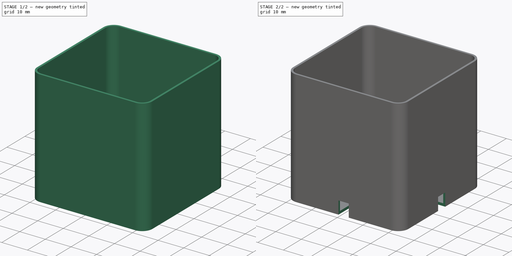
[diagram: build sequence overview — one tinted view per stage of 2, left to right]
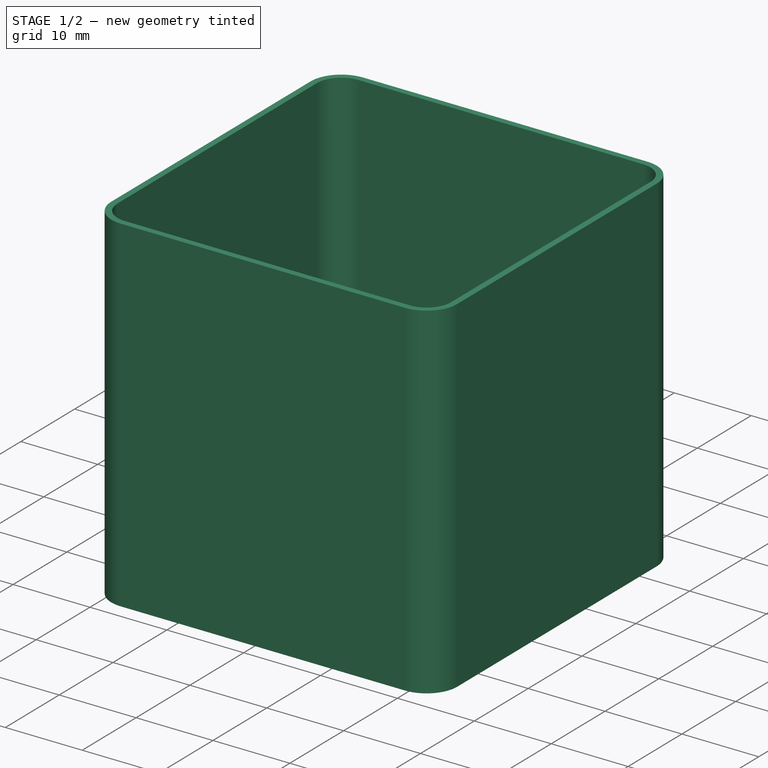
[diagram: stage 1 of 2 — iso view after this stage's code; geometry added in this stage tinted green]
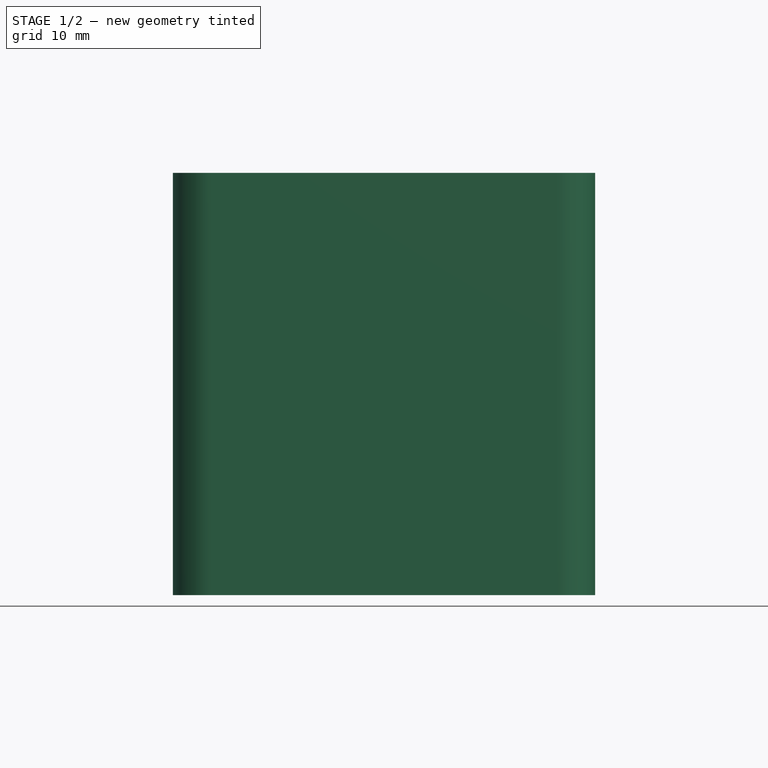
[diagram: stage 1 of 2 — front view after this stage's code; geometry added in this stage tinted green]
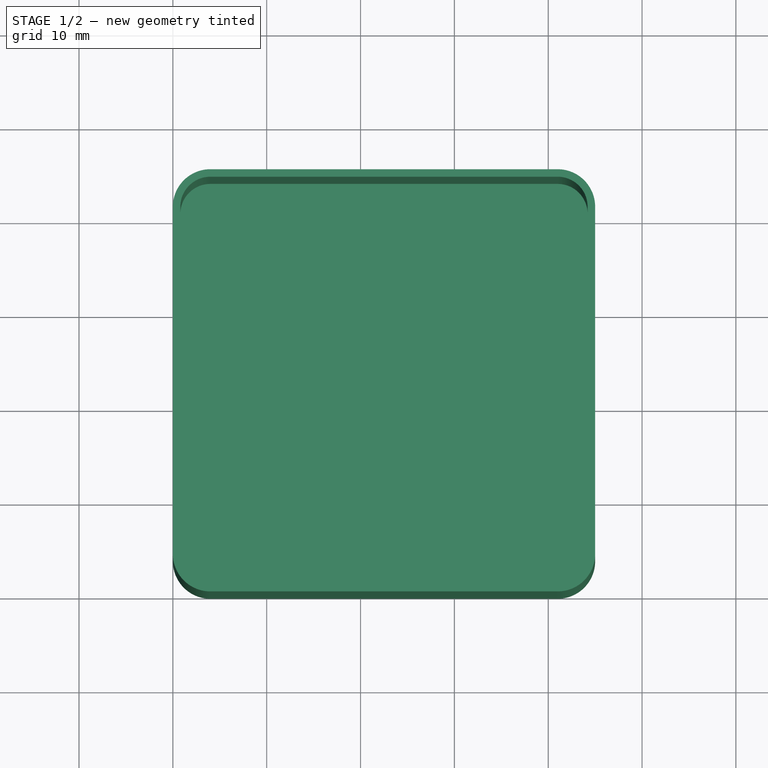
[diagram: stage 1 of 2 — top view after this stage's code; geometry added in this stage tinted green]
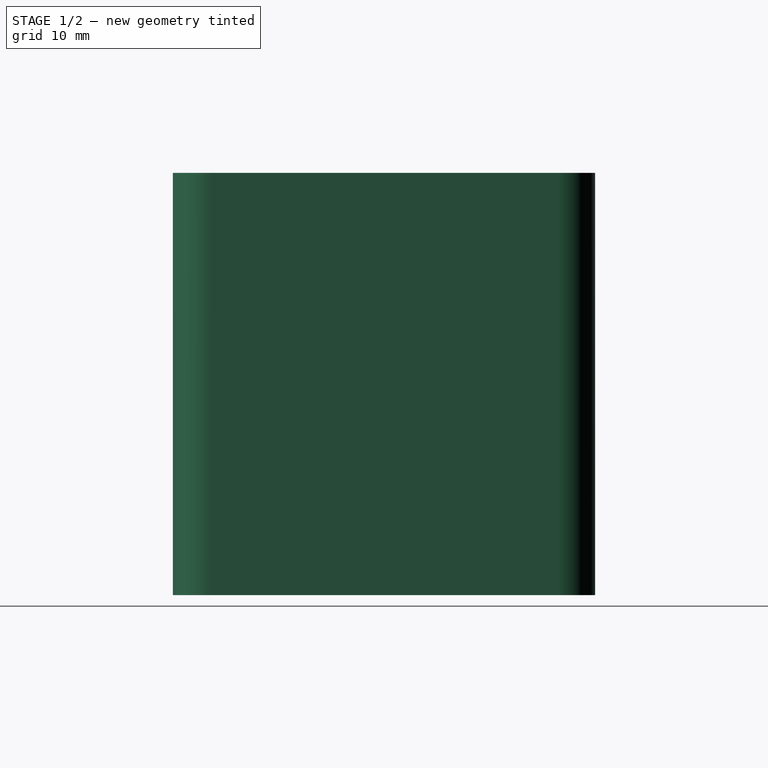
[diagram: stage 1 of 2 — right view after this stage's code; geometry added in this stage tinted green]
FCSTD DOCUMENT  (FreeCAD 1.0R39319 (Git))
Label: flower-pot
License: All rights reserved
LicenseURL: https://en.wikipedia.org/wiki/All_rights_reserved
objects: Sketcher::SketchObject×3, PartDesign::Pocket×2, PartDesign::Pad×1, PartDesign::Body×1
note: 16 computed .brp shape members not serialized (recipe doc carries the construction recipe); baked Part::Feature solids carry a one-line shape summary decoded from their .brp

FEATURE [Sketcher::SketchObject] Sketch
  ArcFitTolerance = 1e-06
  AttachmentSupport = -> [XY_Plane]
  FullyConstrained = true
  MakeInternals = false
  MapMode = 5
  sketch-geometry (10):
    g0: LineSegment StartX=4 StartY=0 StartZ=0 EndX=41 EndY=0 EndZ=0
    g1: LineSegment StartX=45 StartY=4 StartZ=0 EndX=45 EndY=41 EndZ=0
    g2: LineSegment StartX=41 StartY=45 StartZ=0 EndX=4 EndY=45 EndZ=0
    g3: LineSegment StartX=0 StartY=41 StartZ=0 EndX=0 EndY=4 EndZ=0
    g4: ArcOfCircle CenterX=4 CenterY=4 CenterZ=0 NormalX=0 NormalY=0 NormalZ=1 AngleXU=0 Radius=4 StartAngle=3.14159 EndAngle=4.71239
    g5: ArcOfCircle CenterX=41 CenterY=4 CenterZ=0 NormalX=0 NormalY=0 NormalZ=1 AngleXU=0 Radius=4 StartAngle=4.71239 EndAngle=6.28319
    g6: ArcOfCircle CenterX=41 CenterY=41 CenterZ=0 NormalX=0 NormalY=0 NormalZ=1 AngleXU=0 Radius=4 StartAngle=5e-16 EndAngle=1.5708
    g7: ArcOfCircle CenterX=4 CenterY=41 CenterZ=0 NormalX=0 NormalY=0 NormalZ=1 AngleXU=0 Radius=4 StartAngle=1.5708 EndAngle=3.14159
    g8: GeomPoint [constr] X=0 Y=0 Z=0
    g9: GeomPoint [constr] X=45 Y=45 Z=0
  constraints (23):
    c: Tangent(g0,g4) = -1.5708
    c: Tangent(g0,g5) = -1.5708
    c: Tangent(g1,g5) = -1.5708
    c: Tangent(g1,g6) = -1.5708
    c: Tangent(g2,g6) = -1.5708
    c: Tangent(g2,g7) = -1.5708
    c: Tangent(g3,g7) = -1.5708
    c: Tangent(g3,g4) = -1.5708
    c: Horizontal(g0)
    c: Horizontal(g2)
    c: Vertical(g1)
    c: Vertical(g3)
    c: Equal(g4,g5)
    c: Equal(g5,g6)
    c: Equal(g6,g7)
    c: PointOnObject(g8,g0)
    c: PointOnObject(g8,g3)
    c: PointOnObject(g9,g1)
    c: PointOnObject(g9,g2)
    c: Radius(g5) = 4
    c: Coincident(g8,g-1)
    c: DistanceX(g3,g1) = 45
    c: Equal(g3,g2)
FEATURE [PartDesign::Pad] Pad
  Direction = (0,0,1)
  Length = 45
  Length2 = 10
  Profile = -> Sketch
  ReferenceAxis = -> Sketch [N_Axis]
  Refine = true
  Suppressed = false
  Type = 0
FEATURE [Sketcher::SketchObject] Sketch001
  ArcFitTolerance = 1e-06
  AttachmentSupport = -> [Pad]
  ExternalGeometry = -> [Pad]
  FullyConstrained = true
  MakeInternals = false
  MapMode = 5
  Placement = pos=(0,0,45) rot=(0,0,1;0rad)
  sketch-geometry (10):
    g0: LineSegment StartX=4 StartY=0.8 StartZ=0 EndX=41 EndY=0.8 EndZ=0
    g1: LineSegment StartX=44.2 StartY=4 StartZ=0 EndX=44.2 EndY=41 EndZ=0
    g2: LineSegment StartX=41 StartY=44.2 StartZ=0 EndX=4 EndY=44.2 EndZ=0
    g3: LineSegment StartX=0.8 StartY=41 StartZ=0 EndX=0.8 EndY=4 EndZ=0
    g4: ArcOfCircle CenterX=4 CenterY=4 CenterZ=0 NormalX=0 NormalY=0 NormalZ=1 AngleXU=0 Radius=3.2 StartAngle=3.14159 EndAngle=4.71239
    g5: ArcOfCircle CenterX=41 CenterY=4 CenterZ=0 NormalX=0 NormalY=0 NormalZ=1 AngleXU=0 Radius=3.2 StartAngle=4.71239 EndAngle=6.28319
    g6: ArcOfCircle CenterX=41 CenterY=41 CenterZ=0 NormalX=0 NormalY=0 NormalZ=1 AngleXU=0 Radius=3.2 StartAngle=-9e-16 EndAngle=1.5708
    g7: ArcOfCircle CenterX=4 CenterY=41 CenterZ=0 NormalX=0 NormalY=0 NormalZ=1 AngleXU=0 Radius=3.2 StartAngle=1.5708 EndAngle=3.14159
    g8: GeomPoint [constr] X=0.8 Y=0.8 Z=0
    g9: GeomPoint [constr] X=44.2 Y=44.2 Z=0
  constraints (24):
    c: Tangent(g0,g4) = -1.5708
    c: Tangent(g0,g5) = -1.5708
    c: Tangent(g1,g5) = -1.5708
    c: Tangent(g1,g6) = -1.5708
    c: Tangent(g2,g6) = -1.5708
    c: Tangent(g2,g7) = -1.5708
    c: Tangent(g3,g7) = -1.5708
    c: Tangent(g3,g4) = -1.5708
    c: Horizontal(g0)
    c: Horizontal(g2)
    c: Vertical(g1)
    c: Vertical(g3)
    c: Equal(g4,g5)
    c: Equal(g5,g6)
    c: Equal(g6,g7)
    c: PointOnObject(g8,g0)
    c: PointOnObject(g8,g3)
    c: PointOnObject(g9,g1)
    c: PointOnObject(g9,g2)
    c: Radius(g5) = 3.2
    c: Equal(g3,g2)
    c: DistanceY(g-6,g0) = 0.8
    c: DistanceX(g-3,g3) = 0.8
    c: DistanceX(g1,g-5) = 0.8
FEATURE [PartDesign::Pocket] Pocket
  BaseFeature = -> Pad
  Direction = (0,0,-1)
  Length = 44
  Length2 = 5
  Profile = -> Sketch001
  ReferenceAxis = -> Sketch001 [N_Axis]
  Refine = true
  Suppressed = false
  Type = 0
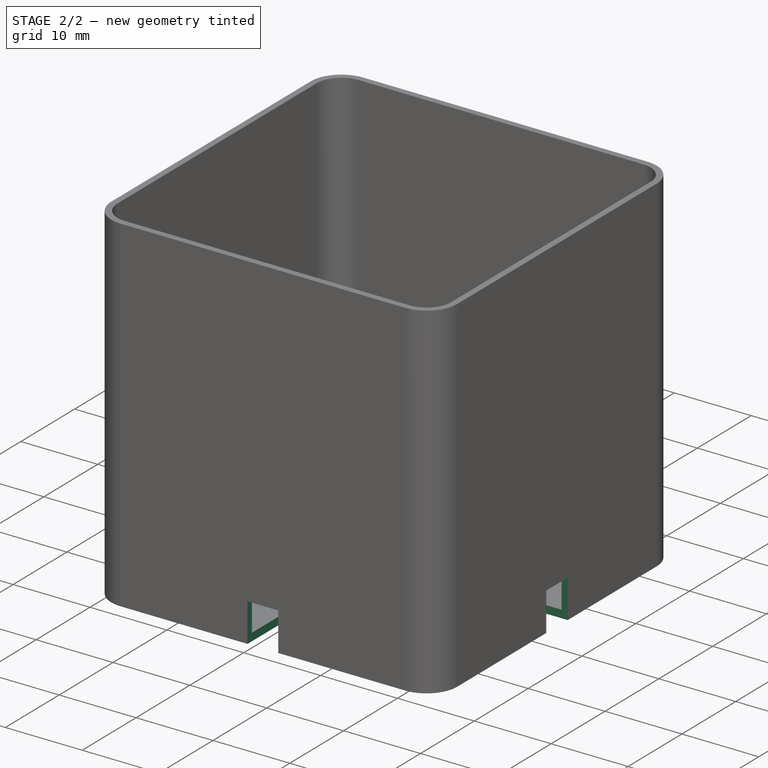
[diagram: stage 2 of 2 — iso view after this stage's code; geometry added in this stage tinted green]
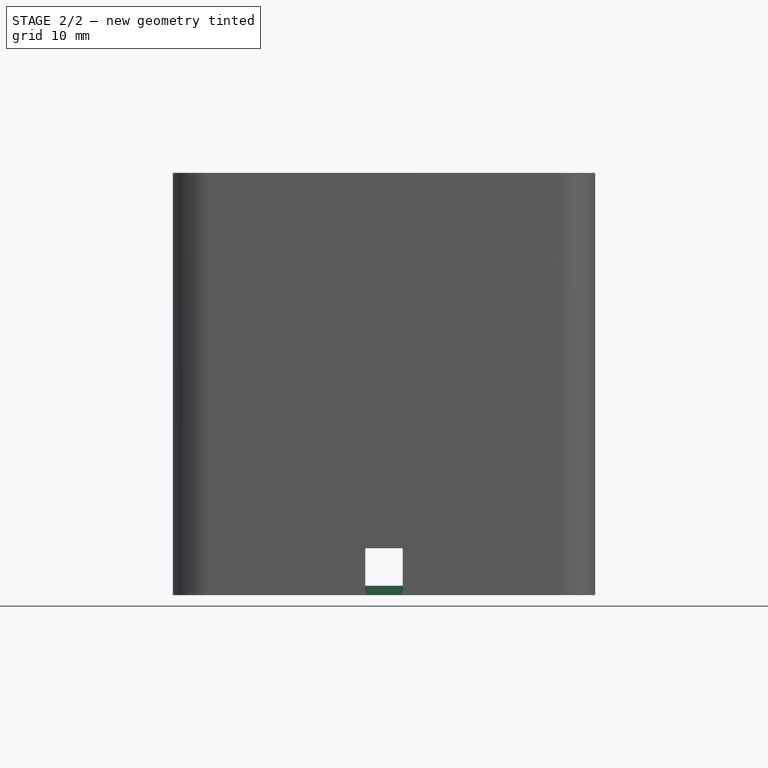
[diagram: stage 2 of 2 — front view after this stage's code; geometry added in this stage tinted green]
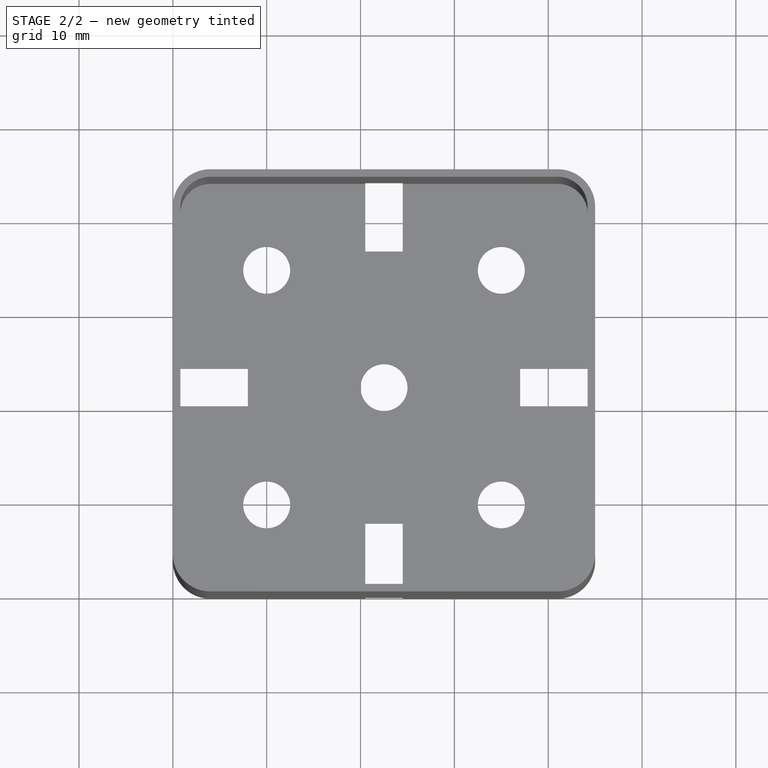
[diagram: stage 2 of 2 — top view after this stage's code; geometry added in this stage tinted green]
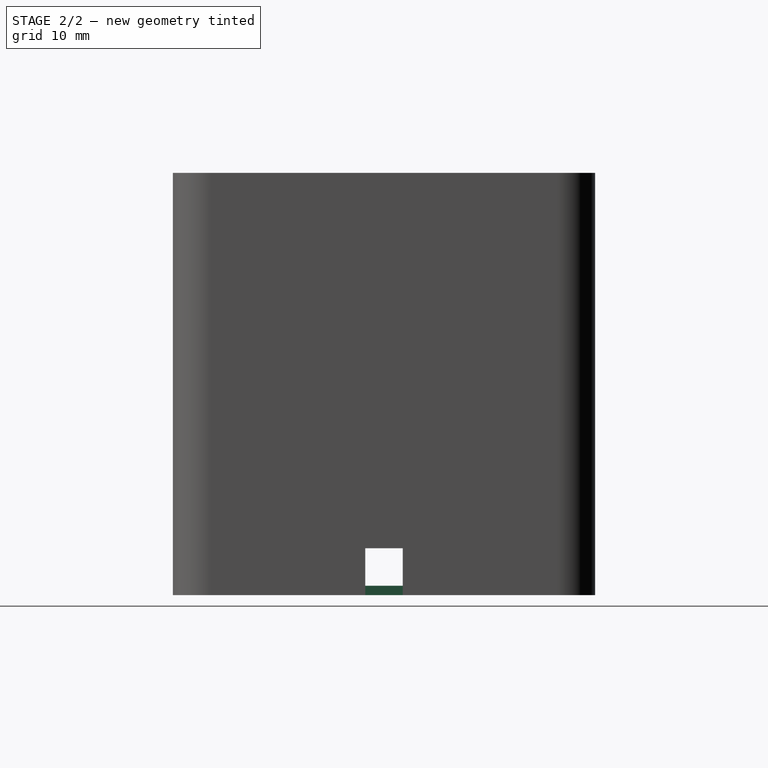
[diagram: stage 2 of 2 — right view after this stage's code; geometry added in this stage tinted green]
FEATURE [Sketcher::SketchObject] Sketch002
  ArcFitTolerance = 1e-06
  AttachmentSupport = -> [Pocket]
  ExternalGeometry = -> [Pocket]
  FullyConstrained = true
  MakeInternals = false
  MapMode = 5
  Placement = pos=(0,0,0) rot=(1,0,0;3.14159rad)
  sketch-geometry (36):
    g0: LineSegment [constr] StartX=10 StartY=-10 StartZ=0 EndX=10 EndY=-35 EndZ=0
    g1: LineSegment [constr] StartX=10 StartY=-35 StartZ=0 EndX=35 EndY=-35 EndZ=0
    g2: LineSegment [constr] StartX=35 StartY=-35 StartZ=0 EndX=35 EndY=-10 EndZ=0
    g3: LineSegment [constr] StartX=35 StartY=-10 StartZ=0 EndX=10 EndY=-10 EndZ=0
    g4: Circle CenterX=10 CenterY=-10 CenterZ=0 NormalX=0 NormalY=0 NormalZ=1 AngleXU=0 Radius=2.5
    g5: Circle CenterX=22.5 CenterY=-22.5 CenterZ=0 NormalX=0 NormalY=0 NormalZ=1 AngleXU=0 Radius=2.5
    g6: Circle CenterX=35 CenterY=-10 CenterZ=0 NormalX=0 NormalY=0 NormalZ=1 AngleXU=0 Radius=2.5
    g7: Circle CenterX=35 CenterY=-35 CenterZ=0 NormalX=0 NormalY=0 NormalZ=1 AngleXU=0 Radius=2.5
    g8: Circle CenterX=10 CenterY=-35 CenterZ=0 NormalX=0 NormalY=0 NormalZ=1 AngleXU=0 Radius=2.5
    g9: LineSegment [constr] StartX=10 StartY=-10 StartZ=0 EndX=22.5 EndY=-22.5 EndZ=0
    g10: LineSegment [constr] StartX=22.5 StartY=-22.5 StartZ=0 EndX=10 EndY=-35 EndZ=0
    g11: LineSegment [constr] StartX=22.5 StartY=-22.5 StartZ=0 EndX=35 EndY=-35 EndZ=0
    g12: LineSegment StartX=20.5 StartY=0 StartZ=0 EndX=20.5 EndY=-8 EndZ=0
    g13: LineSegment StartX=20.5 StartY=-8 StartZ=0 EndX=24.5 EndY=-8 EndZ=0
    g14: LineSegment StartX=24.5 StartY=-8 StartZ=0 EndX=24.5 EndY=0 EndZ=0
    g15: LineSegment StartX=24.5 StartY=0 StartZ=0 EndX=20.5 EndY=0 EndZ=0
    g16: LineSegment StartX=0 StartY=-20.5 StartZ=0 EndX=0 EndY=-24.5 EndZ=0
    g17: LineSegment StartX=0 StartY=-24.5 StartZ=0 EndX=8 EndY=-24.5 EndZ=0
    g18: LineSegment StartX=8 StartY=-24.5 StartZ=0 EndX=8 EndY=-20.5 EndZ=0
    g19: LineSegment StartX=8 StartY=-20.5 StartZ=0 EndX=0 EndY=-20.5 EndZ=0
    g20: LineSegment StartX=45 StartY=-20.5 StartZ=0 EndX=37 EndY=-20.5 EndZ=0
    g21: LineSegment StartX=37 StartY=-20.5 StartZ=0 EndX=37 EndY=-24.5 EndZ=0
    g22: LineSegment StartX=37 StartY=-24.5 StartZ=0 EndX=45 EndY=-24.5 EndZ=0
    g23: LineSegment StartX=45 StartY=-24.5 StartZ=0 EndX=45 EndY=-20.5 EndZ=0
    g24: LineSegment StartX=20.5 StartY=-45 StartZ=0 EndX=24.5 EndY=-45 EndZ=0
    g25: LineSegment StartX=24.5 StartY=-45 StartZ=0 EndX=24.5 EndY=-37 EndZ=0
    g26: LineSegment StartX=24.5 StartY=-37 StartZ=0 EndX=20.5 EndY=-37 EndZ=0
    g27: LineSegment StartX=20.5 StartY=-37 StartZ=0 EndX=20.5 EndY=-45 EndZ=0
    g28: LineSegment [constr] StartX=0 StartY=-4 StartZ=0 EndX=8 EndY=-20.5 EndZ=0
    g29: LineSegment [constr] StartX=8 StartY=-24.5 StartZ=0 EndX=9e-16 EndY=-41 EndZ=0
    g30: LineSegment [constr] StartX=4 StartY=-45 StartZ=0 EndX=20.5 EndY=-37 EndZ=0
    g31: LineSegment [constr] StartX=24.5 StartY=-37 StartZ=0 EndX=41 EndY=-45 EndZ=0
    g32: LineSegment [constr] StartX=45 StartY=-41 StartZ=0 EndX=37 EndY=-24.5 EndZ=0
    g33: LineSegment [constr] StartX=37 StartY=-20.5 StartZ=0 EndX=45 EndY=-4 EndZ=0
    g34: LineSegment [constr] StartX=41 StartY=0 StartZ=0 EndX=24.5 EndY=-8 EndZ=0
    g35: LineSegment [constr] StartX=20.5 StartY=-8 StartZ=0 EndX=4 EndY=0 EndZ=0
  constraints (93):
    c: Coincident(g0,g1)
    c: Coincident(g1,g2)
    c: Coincident(g2,g3)
    c: Coincident(g3,g0)
    c: Vertical(g0)
    c: Vertical(g2)
    c: Horizontal(g1)
    c: Horizontal(g3)
    c: Coincident(g4,g0)
    c: Coincident(g6,g2)
    c: Coincident(g7,g1)
    c: Coincident(g8,g0)
    c: Equal(g4,g5)
    c: Equal(g5,g8)
    c: Equal(g8,g7)
    c: Equal(g7,g6)
    c: Diameter(g6) = 5
    c: Coincident(g9,g0)
    c: Coincident(g9,g5)
    c: Coincident(g10,g5)
    c: Coincident(g10,g0)
    c: Coincident(g11,g5)
    c: Coincident(g11,g1)
    c: Equal(g9,g10)
    c: Equal(g10,g11)
    c: DistanceX(g-5,g0) = 10
    c: DistanceY(g0,g-4) = 10
    c: DistanceY(g-6,g1) = 10
    c: DistanceX(g1,g-3) = 10
    c: Coincident(g12,g13)
    c: Coincident(g13,g14)
    c: Coincident(g14,g15)
    c: Coincident(g15,g12)
    c: Vertical(g12)
    c: Vertical(g14)
    c: Horizontal(g13)
    c: Horizontal(g15)
    c: PointOnObject(g12,g-4)
    c: Coincident(g16,g17)
    c: Coincident(g17,g18)
    c: Coincident(g18,g19)
    c: Coincident(g19,g16)
    c: Vertical(g16)
    c: Vertical(g18)
    c: Horizontal(g17)
    c: Horizontal(g19)
    c: PointOnObject(g16,g-5)
    c: Coincident(g20,g21)
    c: Coincident(g21,g22)
    c: Coincident(g22,g23)
    c: Coincident(g23,g20)
    c: Horizontal(g20)
    c: Horizontal(g22)
    c: Vertical(g21)
    c: Vertical(g23)
    c: PointOnObject(g20,g-3)
    c: Coincident(g24,g25)
    c: Coincident(g25,g26)
    c: Coincident(g26,g27)
    c: Coincident(g27,g24)
    c: Horizontal(g24)
    c: Horizontal(g26)
    c: Vertical(g25)
    c: Vertical(g27)
    c: PointOnObject(g24,g-6)
    c: Equal(g25,g17)
    c: Equal(g17,g12)
    c: Equal(g12,g20)
    c: Equal(g18,g13)
    c: Equal(g13,g21)
    c: Equal(g21,g26)
    c: DistanceX(g24,g24) = 4
    c: DistanceY(g27,g27) = 8
    c: Coincident(g28,g-5)
    c: Coincident(g28,g18)
    c: Coincident(g29,g17)
    c: Coincident(g29,g-5)
    c: Coincident(g30,g-6)
    c: Coincident(g30,g26)
    c: Coincident(g31,g25)
    c: Coincident(g31,g-6)
    c: Coincident(g32,g-3)
    c: Coincident(g32,g21)
    c: Coincident(g33,g20)
    c: Coincident(g33,g-3)
    c: Coincident(g34,g-4)
    c: Coincident(g34,g13)
    c: Coincident(g35,g12)
    c: Coincident(g35,g-4)
    c: Equal(g35,g34)
    c: Equal(g33,g32)
    c: Equal(g31,g30)
    c: Equal(g29,g28)
FEATURE [PartDesign::Pocket] Pocket001
  BaseFeature = -> Pocket
  Direction = (0,0,1)
  Length = 5
  Length2 = 5
  Profile = -> Sketch002
  ReferenceAxis = -> Sketch002 [N_Axis]
  Refine = true
  Suppressed = false
  Type = 0
FEATURE [PartDesign::Body] Body
  AllowCompound = false
  Group = -> [Sketch,Pad,Sketch001,Pocket,Sketch002,Pocket001]
  Origin = -> Origin
  Tip = -> Pocket001
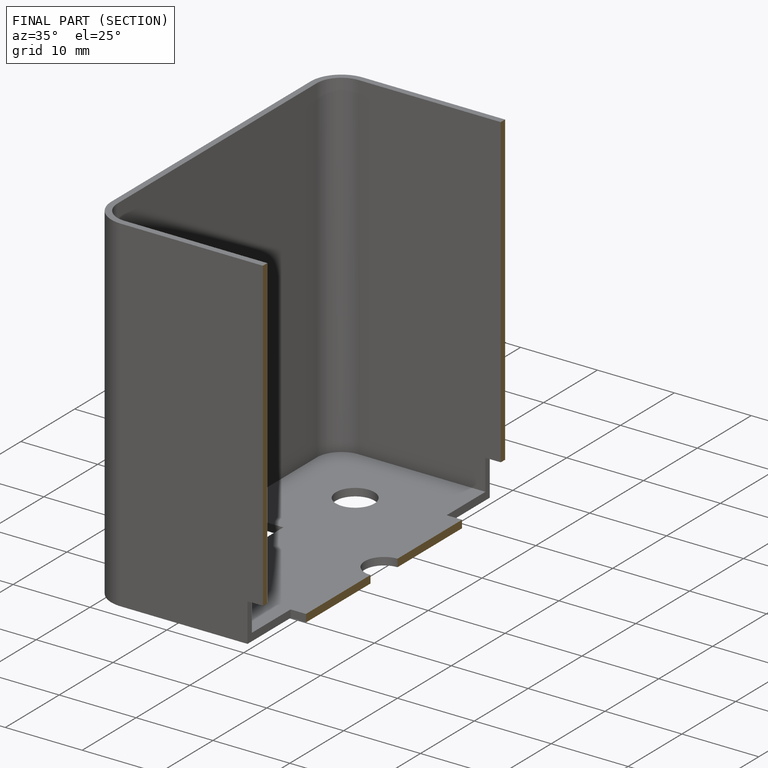
[diagram: finished part — half-section view (interior)]
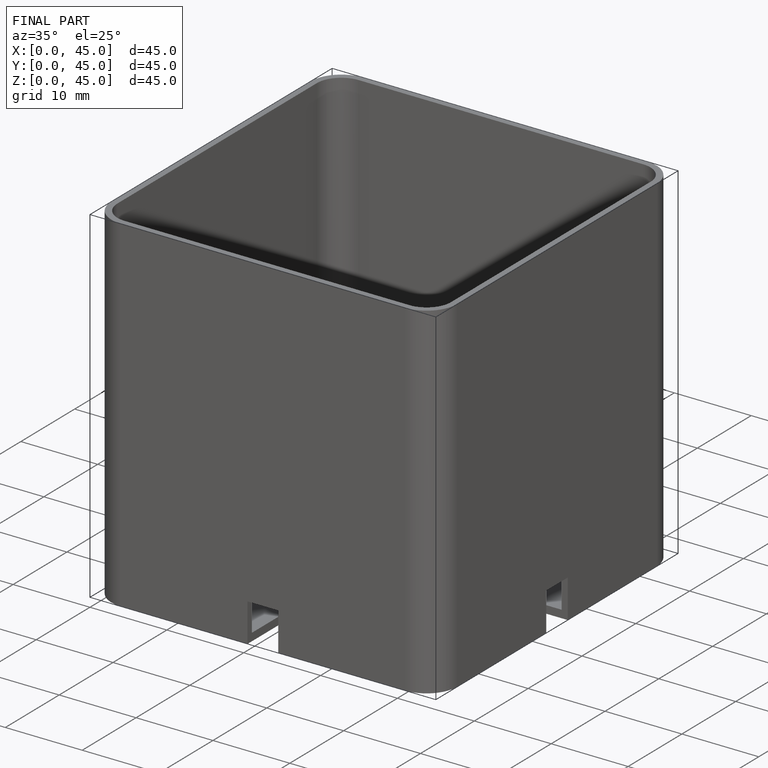
[diagram: finished part — iso view with bounding-box wireframe]
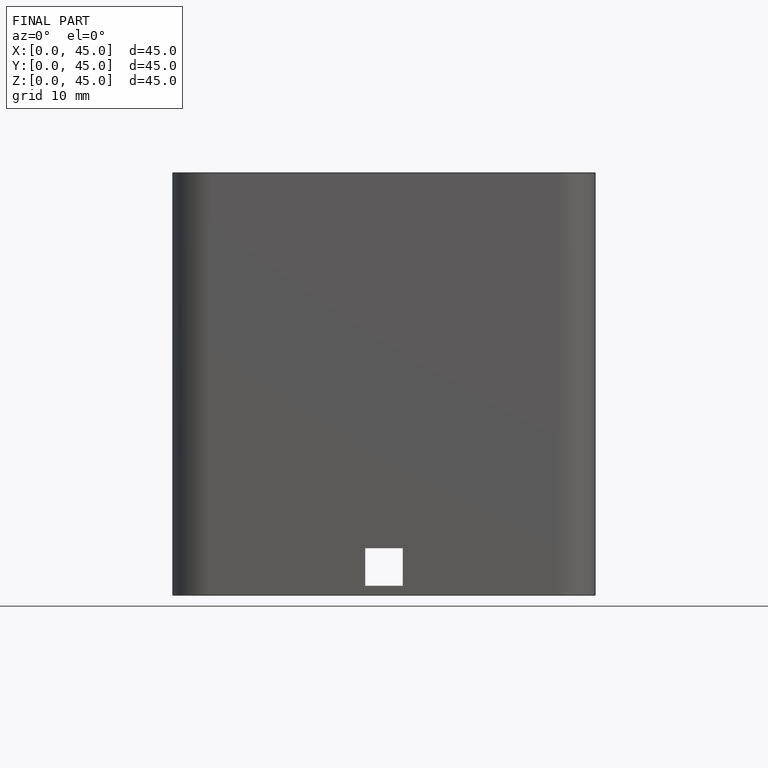
[diagram: finished part — front view with bounding-box wireframe]
